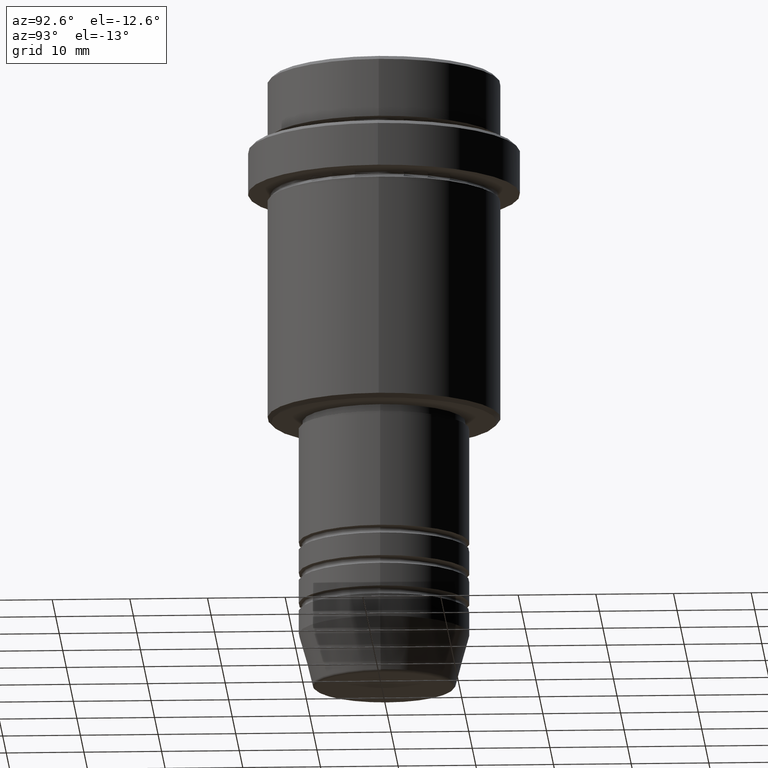
[diagram: clean part render]
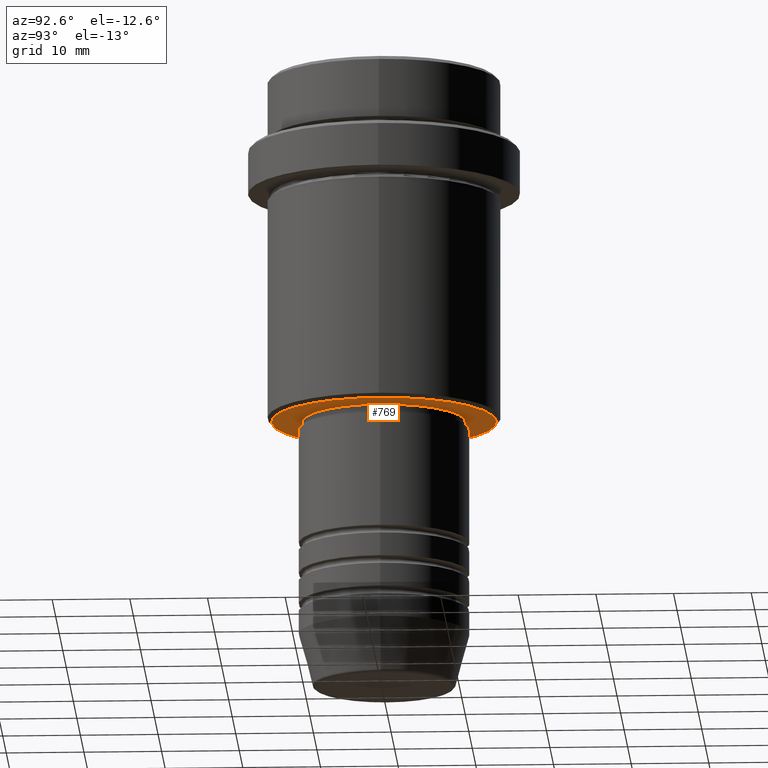
[diagram: same view with one face highlighted and labeled with its STEP entity id]
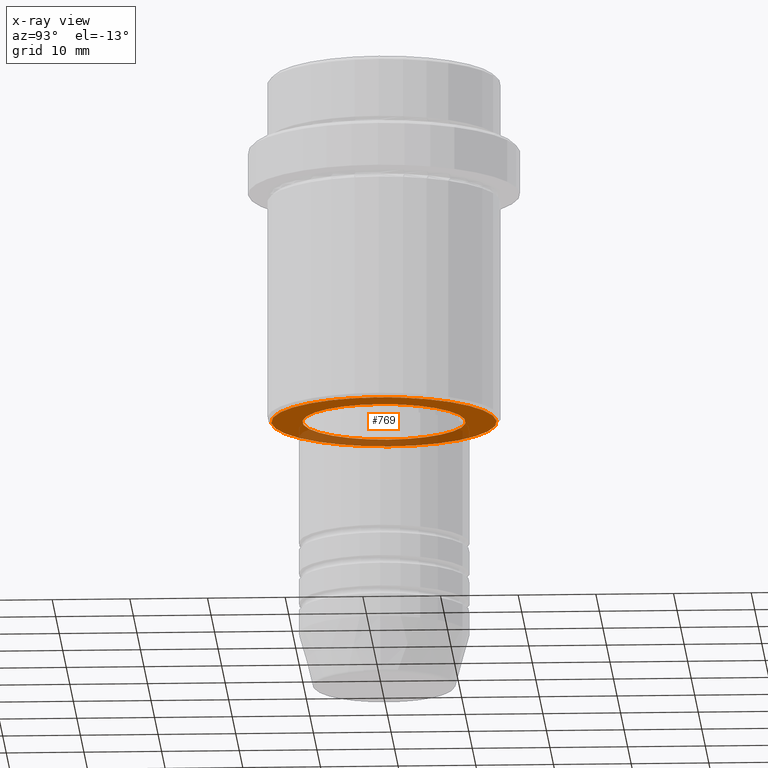
[diagram: x-ray of the same camera — body ghosted, the highlighted face saturated]
A machine part, auxiliary view. The second image highlights one B-rep face of the part: STEP entity #769.
The next image is the same camera in x-ray: the body ghosted, the highlighted face saturated — about 32% of this face is hidden behind the body in this view.
In plain terms, the highlighted planar face has unit normal (0, 0, -1).
Its self-contained STEP definition (entity closure, byte-faithful):
#5 = VERTEX_POINT ( 'NONE', #1108 ) ;
#18 = AXIS2_PLACEMENT_3D ( 'NONE', #1207, #131, #112 ) ;
#53 = DIRECTION ( 'NONE',  ( 0.000000000000000000, 0.000000000000000000, -1.000000000000000000 ) ) ;
#87 = ORIENTED_EDGE ( 'NONE', *, *, #810, .T. ) ;
#112 = DIRECTION ( 'NONE',  ( -1.000000000000000000, 0.000000000000000000, -0.000000000000000000 ) ) ;
#131 = DIRECTION ( 'NONE',  ( 0.000000000000000000, 0.000000000000000000, -1.000000000000000000 ) ) ;
#209 = ORIENTED_EDGE ( 'NONE', *, *, #573, .T. ) ;
#214 = EDGE_CURVE ( 'NONE', #712, #1012, #542, .T. ) ;
#348 = ORIENTED_EDGE ( 'NONE', *, *, #483, .T. ) ;
#354 = DIRECTION ( 'NONE',  ( -0.000000000000000000, -0.000000000000000000, 1.000000000000000000 ) ) ;
#360 = AXIS2_PLACEMENT_3D ( 'NONE', #738, #751, #517 ) ;
#365 = AXIS2_PLACEMENT_3D ( 'NONE', #1411, #354, #1101 ) ;
#416 = CARTESIAN_POINT ( 'NONE',  ( -10.49999999999999289, 1.285879139104720042E-15, -45.00000000000000000 ) ) ;
#483 = EDGE_CURVE ( 'NONE', #5, #631, #822, .T. ) ;
#517 = DIRECTION ( 'NONE',  ( 1.000000000000000000, 0.000000000000000000, 0.000000000000000000 ) ) ;
#518 = CIRCLE ( 'NONE', #365, 10.49999999999999289 ) ;
#542 = CIRCLE ( 'NONE', #360, 10.49999999999999289 ) ;
#573 = EDGE_CURVE ( 'NONE', #631, #5, #1251, .T. ) ;
#631 = VERTEX_POINT ( 'NONE', #1056 ) ;
#694 = DIRECTION ( 'NONE',  ( -1.000000000000000000, 0.000000000000000000, 0.000000000000000000 ) ) ;
#701 = ORIENTED_EDGE ( 'NONE', *, *, #214, .T. ) ;
#712 = VERTEX_POINT ( 'NONE', #416 ) ;
#738 = CARTESIAN_POINT ( 'NONE',  ( 0.000000000000000000, 0.000000000000000000, -45.00000000000000000 ) ) ;
#751 = DIRECTION ( 'NONE',  ( -0.000000000000000000, -0.000000000000000000, 1.000000000000000000 ) ) ;
#755 = AXIS2_PLACEMENT_3D ( 'NONE', #1256, #53, #694 ) ;
#769 = ADVANCED_FACE ( 'NONE', ( #1009, #876 ), #772, .T. ) ;
#772 = PLANE ( 'NONE',  #18 ) ;
#800 = CARTESIAN_POINT ( 'NONE',  ( 10.49999999999999289, 0.000000000000000000, -45.00000000000000000 ) ) ;
#810 = EDGE_CURVE ( 'NONE', #1012, #712, #518, .T. ) ;
#822 = CIRCLE ( 'NONE', #1320, 14.49999999999998401 ) ;
#876 = FACE_BOUND ( 'NONE', #923, .T. ) ;
#923 = EDGE_LOOP ( 'NONE', ( #87, #701 ) ) ;
#1009 = FACE_OUTER_BOUND ( 'NONE', #1065, .T. ) ;
#1012 = VERTEX_POINT ( 'NONE', #800 ) ;
#1027 = DIRECTION ( 'NONE',  ( -1.000000000000000000, 0.000000000000000000, 0.000000000000000000 ) ) ;
#1056 = CARTESIAN_POINT ( 'NONE',  ( 14.49999999999998401, 0.000000000000000000, -45.00000000000000000 ) ) ;
#1065 = EDGE_LOOP ( 'NONE', ( #209, #348 ) ) ;
#1101 = DIRECTION ( 'NONE',  ( 1.000000000000000000, 0.000000000000000000, 0.000000000000000000 ) ) ;
#1108 = CARTESIAN_POINT ( 'NONE',  ( -14.49999999999998401, 1.806354028742345013E-15, -45.00000000000000000 ) ) ;
#1207 = CARTESIAN_POINT ( 'NONE',  ( 0.000000000000000000, 15.00000000000000000, -45.00000000000000000 ) ) ;
#1251 = CIRCLE ( 'NONE', #755, 14.49999999999998401 ) ;
#1256 = CARTESIAN_POINT ( 'NONE',  ( 0.000000000000000000, 0.000000000000000000, -45.00000000000000000 ) ) ;
#1320 = AXIS2_PLACEMENT_3D ( 'NONE', #1337, #1368, #1027 ) ;
#1337 = CARTESIAN_POINT ( 'NONE',  ( 0.000000000000000000, 0.000000000000000000, -45.00000000000000000 ) ) ;
#1368 = DIRECTION ( 'NONE',  ( 0.000000000000000000, 0.000000000000000000, -1.000000000000000000 ) ) ;
#1411 = CARTESIAN_POINT ( 'NONE',  ( 0.000000000000000000, 0.000000000000000000, -45.00000000000000000 ) ) ;